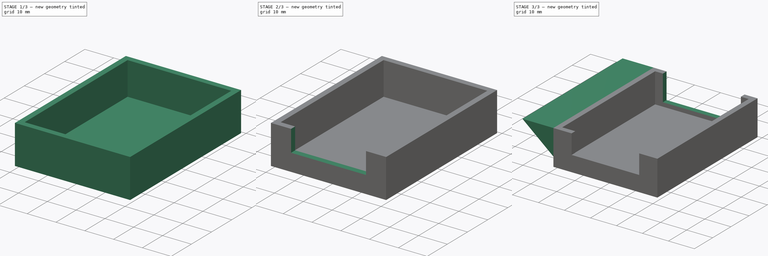
[diagram: build sequence overview — one tinted view per stage of 3, left to right]
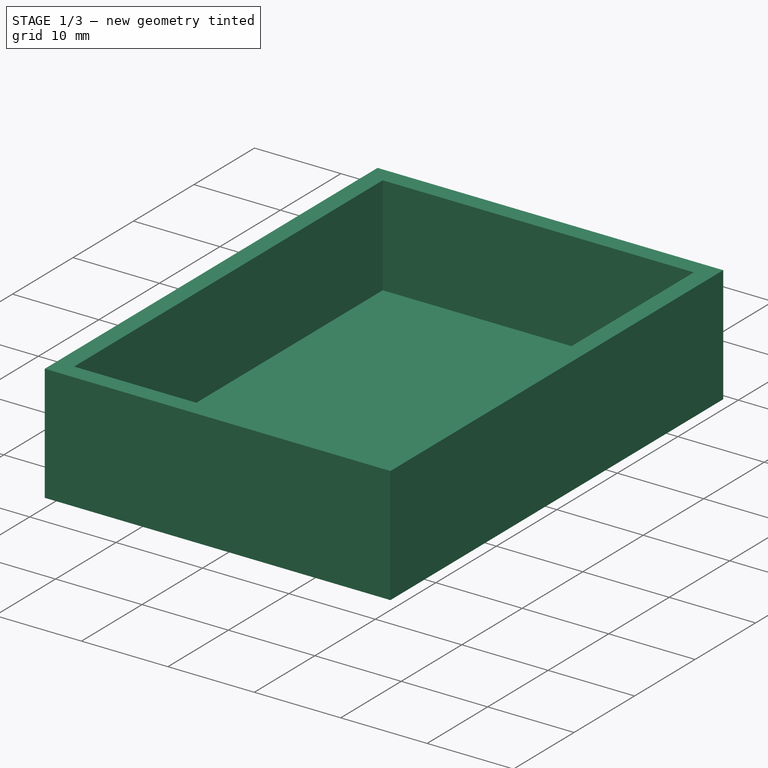
[diagram: stage 1 of 3 — iso view after this stage's code; geometry added in this stage tinted green]
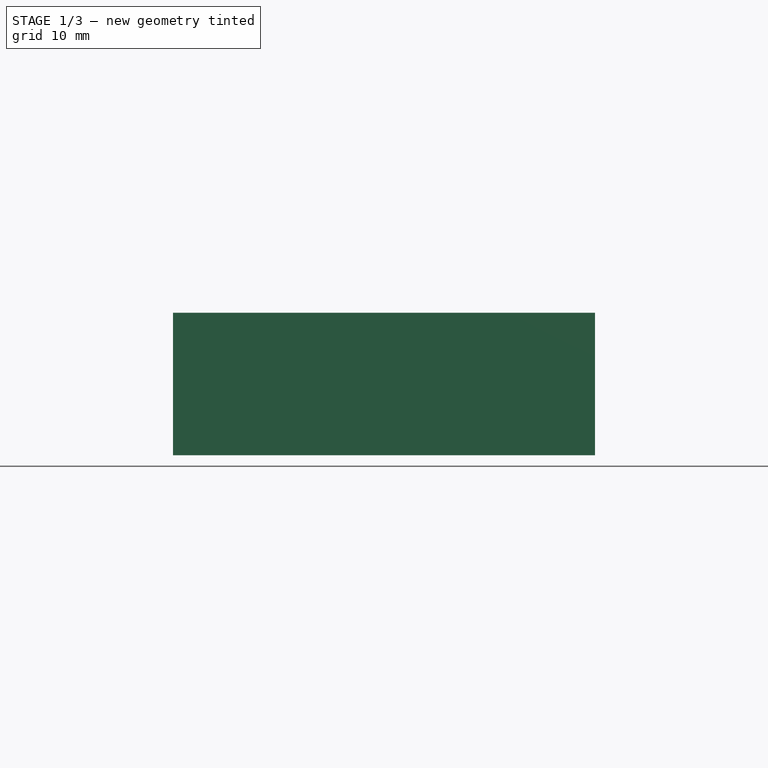
[diagram: stage 1 of 3 — front view after this stage's code; geometry added in this stage tinted green]
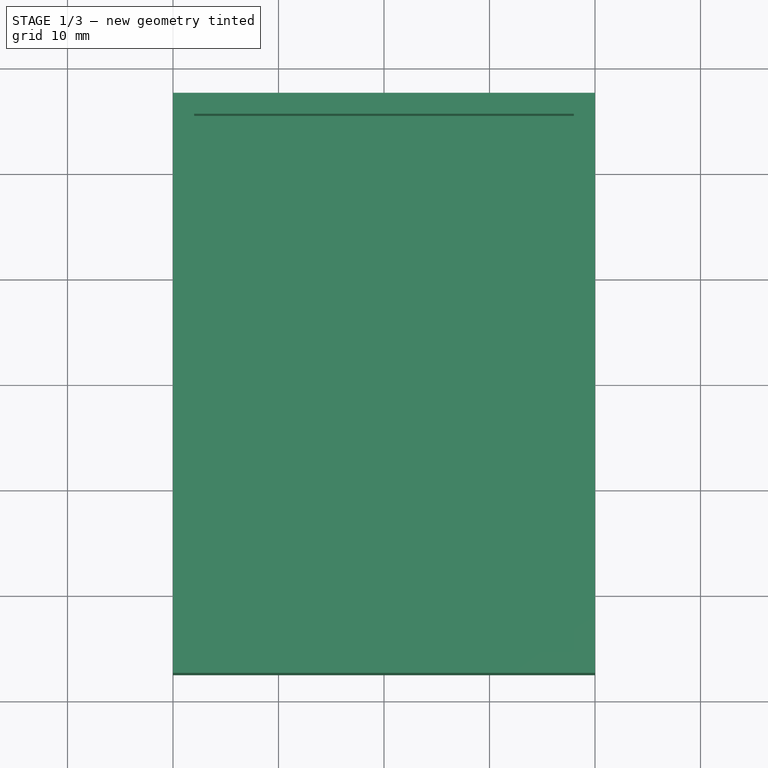
[diagram: stage 1 of 3 — top view after this stage's code; geometry added in this stage tinted green]
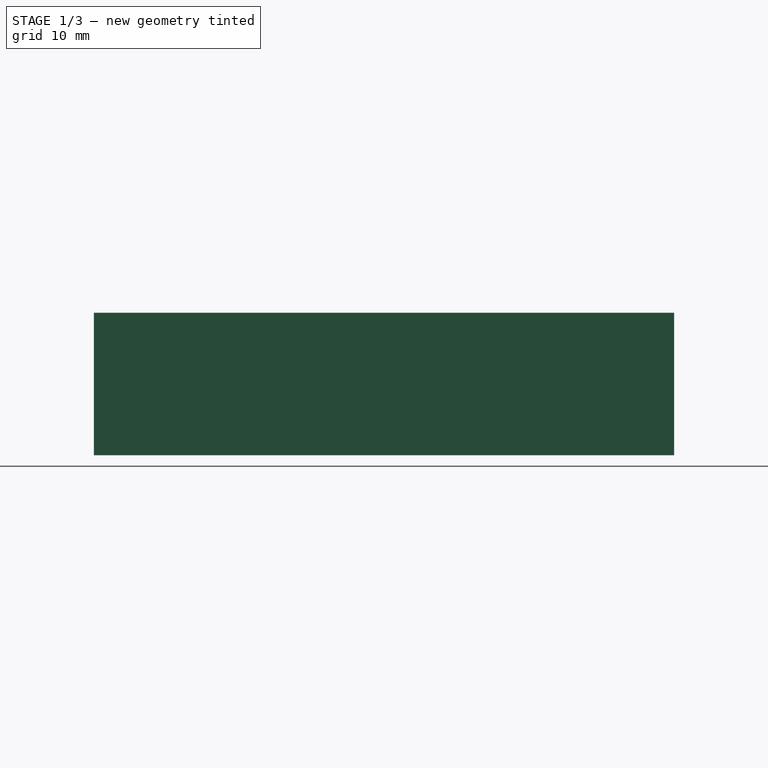
[diagram: stage 1 of 3 — right view after this stage's code; geometry added in this stage tinted green]
FCSTD DOCUMENT  (FreeCAD 0.21R33694 (Git))
Label: sd card mount
License: All rights reserved
LicenseURL: https://en.wikipedia.org/wiki/All_rights_reserved
objects: Sketcher::SketchObject×5, PartDesign::Pocket×3, PartDesign::Pad×2, PartDesign::Plane×1, PartDesign::Body×1
note: 17 computed .brp shape members not serialized (recipe doc carries the construction recipe); baked Part::Feature solids carry a one-line shape summary decoded from their .brp

FEATURE [Sketcher::SketchObject] Sketch
  FullyConstrained = true
  MapMode = 5
  Support = -> [XY_Plane]
  sketch-geometry (4):
    g0: LineSegment StartX=-20 StartY=27.5 StartZ=0 EndX=20 EndY=27.5 EndZ=0
    g1: LineSegment StartX=20 StartY=27.5 StartZ=0 EndX=20 EndY=-27.5 EndZ=0
    g2: LineSegment StartX=20 StartY=-27.5 StartZ=0 EndX=-20 EndY=-27.5 EndZ=0
    g3: LineSegment StartX=-20 StartY=-27.5 StartZ=0 EndX=-20 EndY=27.5 EndZ=0
  constraints (11):
    c: Coincident(g0,g1)
    c: Coincident(g1,g2)
    c: Coincident(g2,g3)
    c: Coincident(g3,g0)
    c: Horizontal(g0)
    c: Horizontal(g2)
    c: Vertical(g1)
    c: Vertical(g3)
    c: Symmetric(g0,g1,g-1)
    c: DistanceY(g3,g3) = 55
    c: DistanceX(g0,g0) = 40
FEATURE [PartDesign::Pad] Pad
  Direction = (0,0,1)
  Length = 13.5
  Length2 = 10
  Profile = -> Sketch
  ReferenceAxis = -> Sketch [N_Axis]
  Type = 0
FEATURE [Sketcher::SketchObject] Sketch001
  FullyConstrained = true
  MapMode = 5
  Placement = pos=(0,0,13.5) rot=(0,0,1;0rad)
  Support = -> [Pad]
  sketch-geometry (4):
    g0: LineSegment StartX=-18 StartY=25.5 StartZ=0 EndX=18 EndY=25.5 EndZ=0
    g1: LineSegment StartX=18 StartY=25.5 StartZ=0 EndX=18 EndY=-25.5 EndZ=0
    g2: LineSegment StartX=18 StartY=-25.5 StartZ=0 EndX=-18 EndY=-25.5 EndZ=0
    g3: LineSegment StartX=-18 StartY=-25.5 StartZ=0 EndX=-18 EndY=25.5 EndZ=0
  constraints (11):
    c: Coincident(g0,g1)
    c: Coincident(g1,g2)
    c: Coincident(g2,g3)
    c: Coincident(g3,g0)
    c: Horizontal(g0)
    c: Horizontal(g2)
    c: Vertical(g1)
    c: Vertical(g3)
    c: Symmetric(g0,g1,g-1)
    c: DistanceX(g0,g0) = 36
    c: DistanceY(g3,g3) = 51
FEATURE [PartDesign::Pocket] Pocket
  BaseFeature = -> Pad
  Direction = (0,0,-1)
  Length = 11.5
  Length2 = 5
  Profile = -> Sketch001
  ReferenceAxis = -> Sketch001 [N_Axis]
  Type = 0
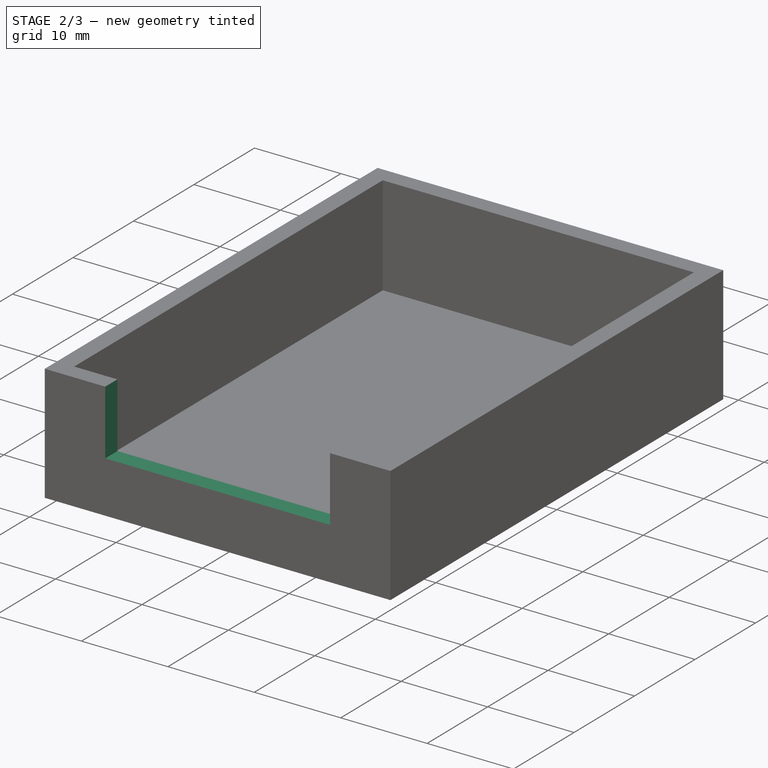
[diagram: stage 2 of 3 — iso view after this stage's code; geometry added in this stage tinted green]
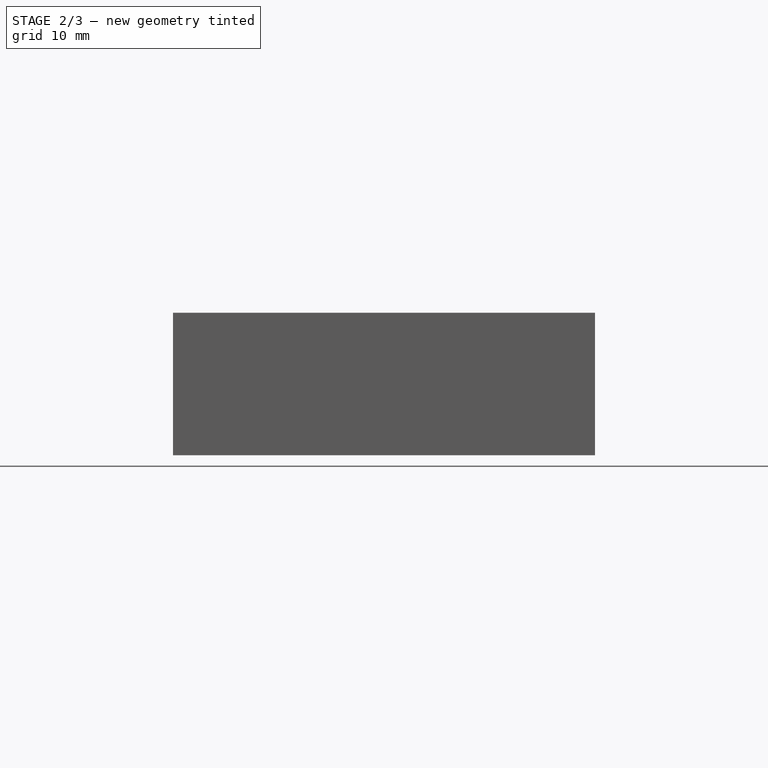
[diagram: stage 2 of 3 — front view after this stage's code; geometry added in this stage tinted green]
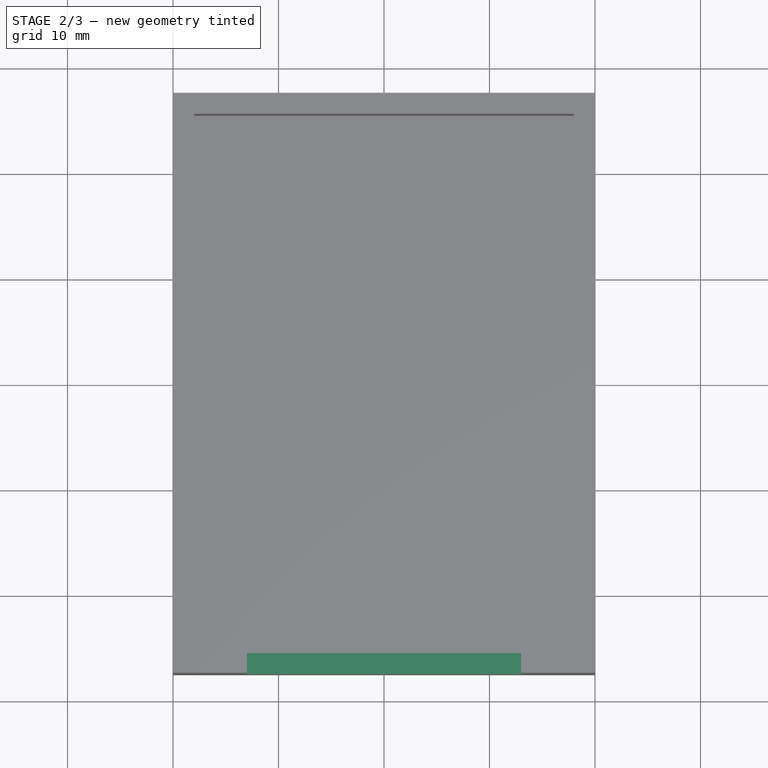
[diagram: stage 2 of 3 — top view after this stage's code; geometry added in this stage tinted green]
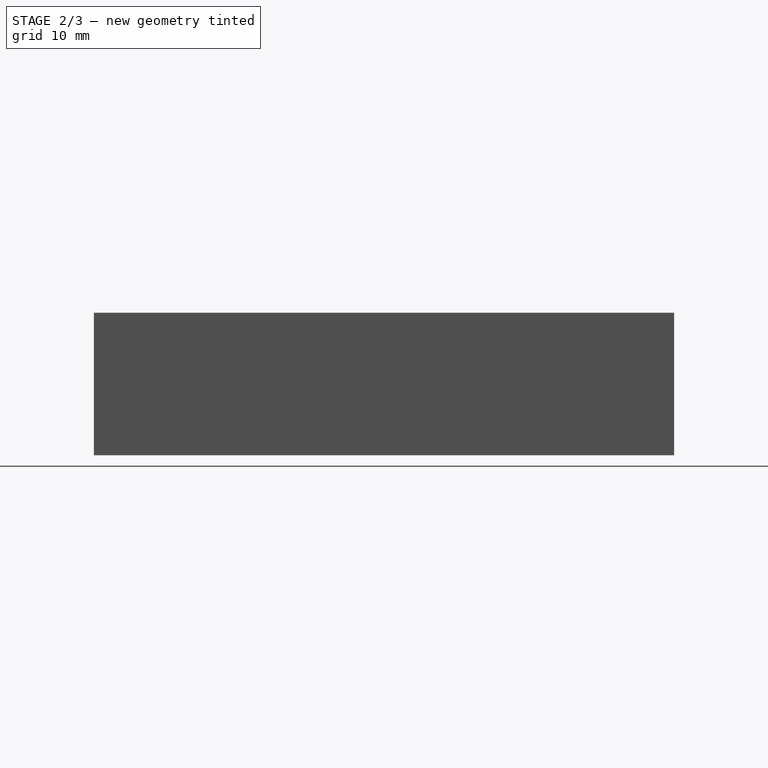
[diagram: stage 2 of 3 — right view after this stage's code; geometry added in this stage tinted green]
FEATURE [Sketcher::SketchObject] Sketch002
  ExternalGeometry = -> [Pocket]
  FullyConstrained = true
  MapMode = 5
  Placement = pos=(0,-27.5,0) rot=(1,0,0;1.5708rad)
  Support = -> [Pocket]
  sketch-geometry (4):
    g0: LineSegment StartX=-13 StartY=13.5 StartZ=0 EndX=13 EndY=13.5 EndZ=0
    g1: LineSegment StartX=13 StartY=13.5 StartZ=0 EndX=13 EndY=6 EndZ=0
    g2: LineSegment StartX=13 StartY=6 StartZ=0 EndX=-13 EndY=6 EndZ=0
    g3: LineSegment StartX=-13 StartY=6 StartZ=0 EndX=-13 EndY=13.5 EndZ=0
  constraints (13):
    c: Coincident(g0,g1)
    c: Coincident(g1,g2)
    c: Coincident(g2,g3)
    c: Coincident(g3,g0)
    c: Horizontal(g0)
    c: Horizontal(g2)
    c: Vertical(g1)
    c: Vertical(g3)
    c: PointOnObject(g0,g-3)
    c: DistanceX(g0,g0) = 26
    c: DistanceX(g-4,g0) = 7
    c: DistanceX(g-3,g-3) = 40
    c: DistanceY(g1,g1) = 7.5
FEATURE [PartDesign::Pocket] Pocket001
  BaseFeature = -> Pocket
  Direction = (0,1,-2e-16)
  Length = 0
  Length2 = 5
  Profile = -> Sketch002
  ReferenceAxis = -> Sketch002 [N_Axis]
  Type = 2
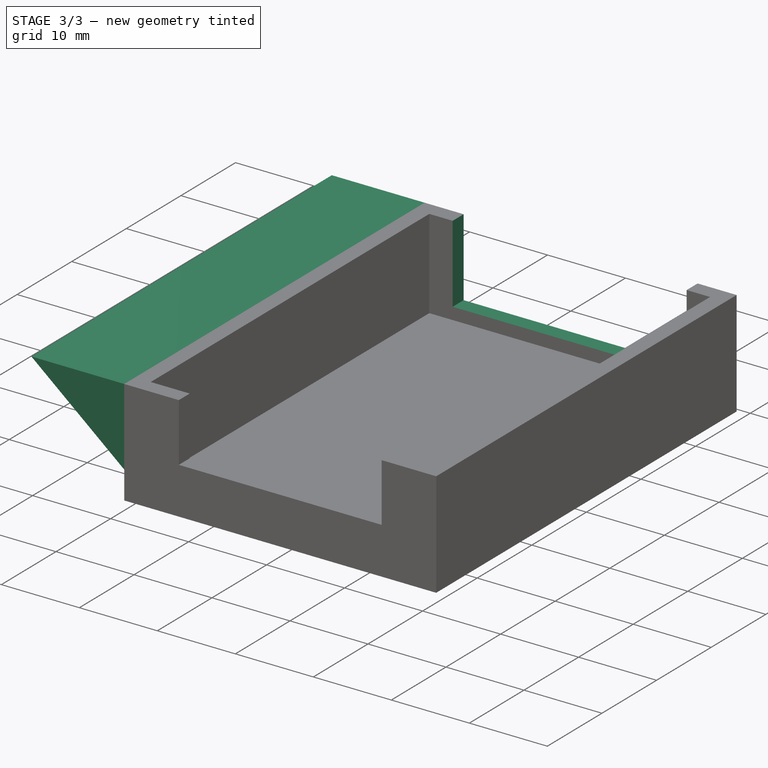
[diagram: stage 3 of 3 — iso view after this stage's code; geometry added in this stage tinted green]
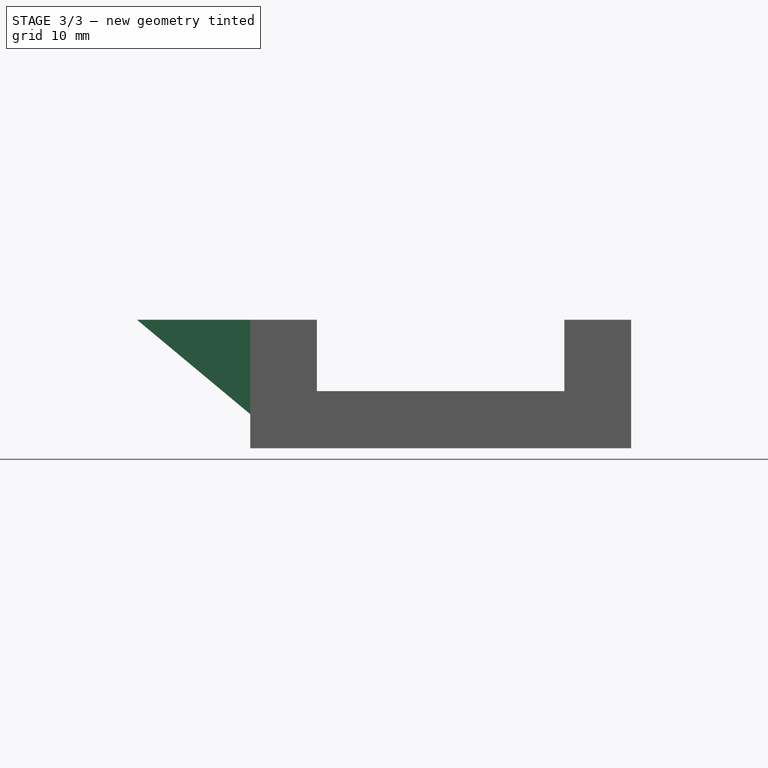
[diagram: stage 3 of 3 — front view after this stage's code; geometry added in this stage tinted green]
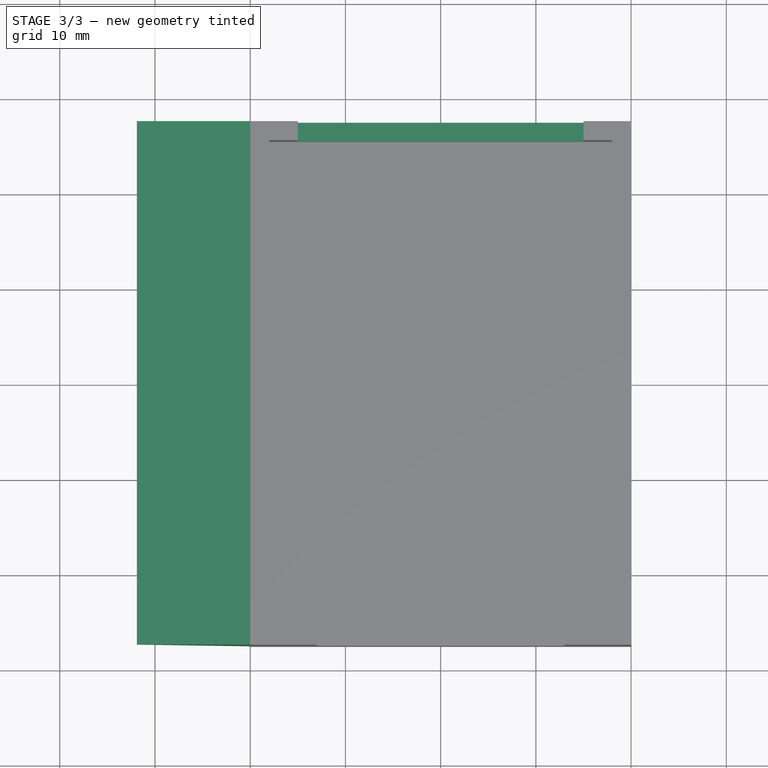
[diagram: stage 3 of 3 — top view after this stage's code; geometry added in this stage tinted green]
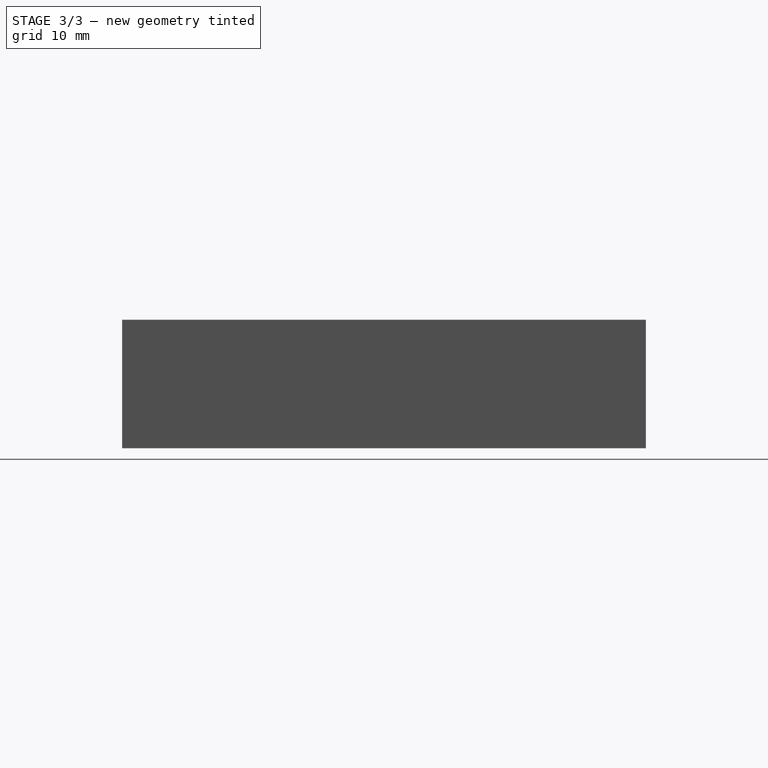
[diagram: stage 3 of 3 — right view after this stage's code; geometry added in this stage tinted green]
FEATURE [Sketcher::SketchObject] Sketch003
  ExternalGeometry = -> [Pocket001]
  FullyConstrained = false
  MapMode = 5
  Placement = pos=(0,27.5,0) rot=(0,0.707107,0.707107;3.14159rad)
  Support = -> [Pocket001]
  sketch-geometry (4):
    g0: LineSegment StartX=-15 StartY=13.5 StartZ=0 EndX=15 EndY=13.5 EndZ=0
    g1: LineSegment StartX=15 StartY=13.5 StartZ=0 EndX=15 EndY=3.54035 EndZ=0
    g2: LineSegment StartX=15 StartY=3.54035 StartZ=0 EndX=-15 EndY=3.54035 EndZ=0
    g3: LineSegment StartX=-15 StartY=3.54035 StartZ=0 EndX=-15 EndY=13.5 EndZ=0
  constraints (11):
    c: Coincident(g0,g1)
    c: Coincident(g1,g2)
    c: Coincident(g2,g3)
    c: Coincident(g3,g0)
    c: Horizontal(g0)
    c: Horizontal(g2)
    c: Vertical(g1)
    c: Vertical(g3)
    c: PointOnObject(g0,g-3)
    c: DistanceX(g2,g2) = 30
    c: DistanceX(g-4,g0) = 5
FEATURE [PartDesign::Pocket] Pocket002
  BaseFeature = -> Pocket001
  Direction = (0,-1,2e-16)
  Length = 5
  Length2 = 5
  Profile = -> Sketch003
  ReferenceAxis = -> Sketch003 [N_Axis]
  Type = 2
FEATURE [Sketcher::SketchObject] Sketch004
  ExternalGeometry = -> [Pocket002]
  FullyConstrained = true
  MapMode = 5
  Placement = pos=(0,27.5,0) rot=(0,0.707107,0.707107;3.14159rad)
  Support = -> [Pocket002]
  sketch-geometry (3):
    g0: LineSegment StartX=19.9 StartY=13.5 StartZ=0 EndX=19.9 EndY=3.5 EndZ=0
    g1: LineSegment StartX=19.9 StartY=3.5 StartZ=0 EndX=31.9 EndY=13.5 EndZ=0
    g2: LineSegment StartX=31.9 StartY=13.5 StartZ=0 EndX=19.9 EndY=13.5 EndZ=0
  constraints (9):
    c: Vertical(g0)
    c: Coincident(g0,g1)
    c: Coincident(g2,g0)
    c: Horizontal(g2)
    c: DistanceX(g0,g-4) = 0.1
    c: DistanceY(g0,g-4) = 0
    c: Coincident(g1,g2)
    c: DistanceX(g2,g2) = 12
    c: DistanceY(g0,g0) = 10
FEATURE [PartDesign::Pad] Pad001
  BaseFeature = -> Pocket002
  Direction = (0,1,-2e-16)
  Length = 55
  Length2 = 10
  Profile = -> Sketch004
  ReferenceAxis = -> Sketch004 [N_Axis]
  Reversed = true
  Type = 0
FEATURE [PartDesign::Plane] DatumPlane
  Length = 19.09
  MapMode = 2
  Placement = pos=(-29,0,4) rot=(0,0,1;0rad)
  ResizeMode = 1
  Width = 66.1884
FEATURE [PartDesign::Body] Body
  Group = -> [Sketch,Pad,Sketch001,Pocket,Sketch002,Pocket001,Sketch003,Pocket002,Sketch004,Pad001,DatumPlane]
  Origin = -> Origin
  Tip = -> Pad001
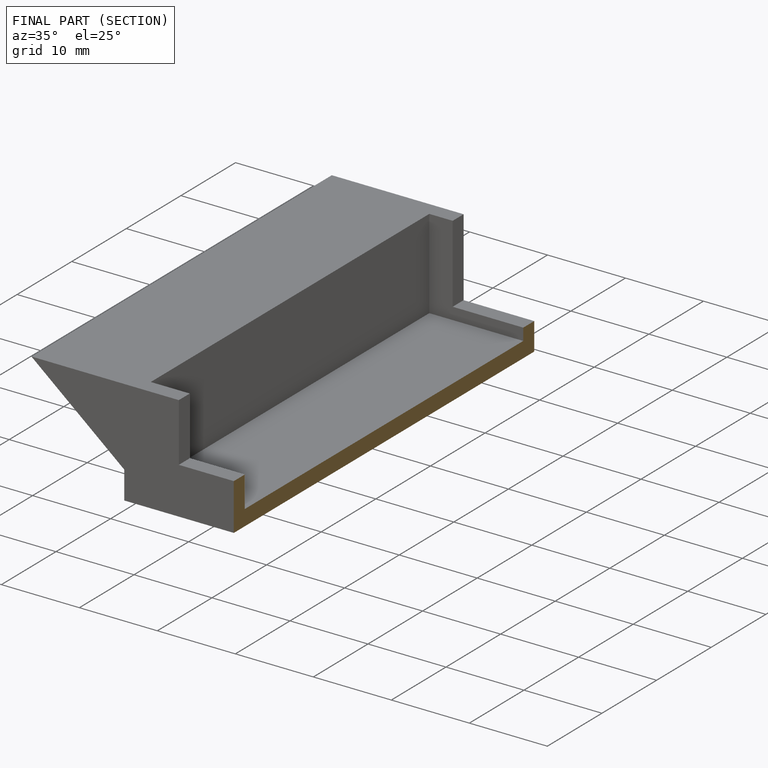
[diagram: finished part — half-section view (interior)]
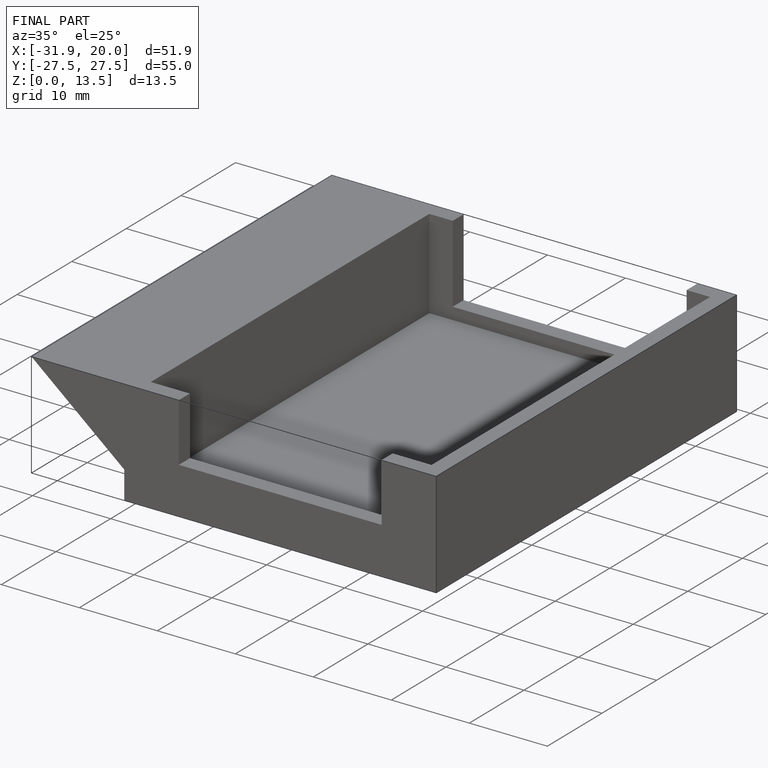
[diagram: finished part — iso view with bounding-box wireframe]
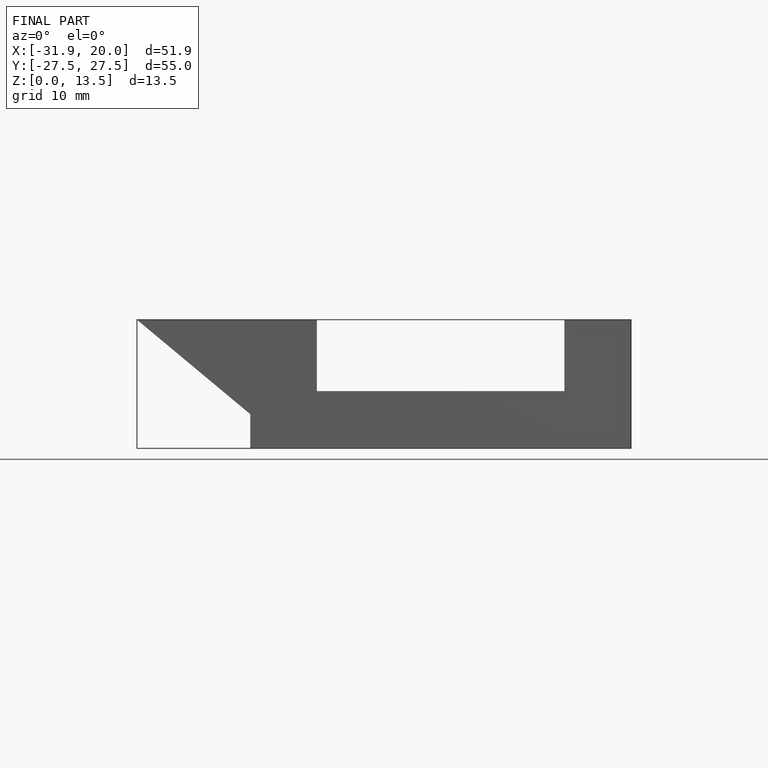
[diagram: finished part — front view with bounding-box wireframe]
